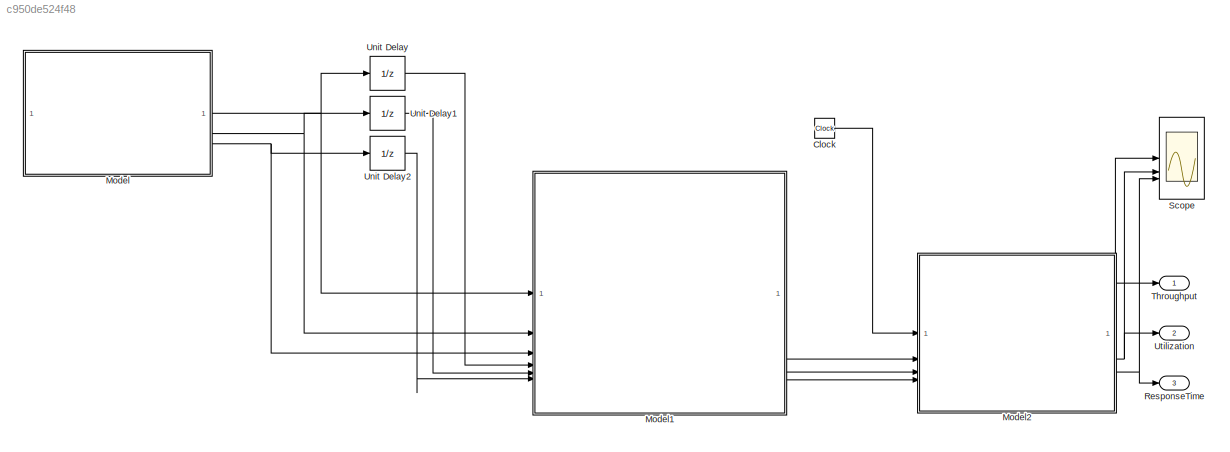
MODEL slx_c950de524f48
KIND model
CONFIG AbsTol = auto
CONFIG EnableMultiTasking = off
CONFIG FixedStep = auto
CONFIG MaxStep = auto
CONFIG MinStep = auto
CONFIG RelTol = 1e-3
CONFIG SampleTimeConstraint = Unconstrained
CONFIG SolverName = VariableStepAuto
CONFIG StartTime = 0.0
CONFIG StopTime = 10.0
BLOCK [Clock] Clock
  DisplayTime = on
BLOCK [ModelReference] Model
  ModelNameDialog = Customer.slx
  ModelReferenceVersion = 1.1
BLOCK [ModelReference] Model1
  ModelNameDialog = CalcTimes.slx
  ModelReferenceVersion = 1.5
BLOCK [ModelReference] Model2
  ModelNameDialog = PerformanceMetrics.slx
  ModelReferenceVersion = 1.2
BLOCK [Outport] ResponseTime
  Port = 3
BLOCK [Scope] Scope
  Floating = off
  NumInputPorts = 3
  ScopeSpecificationString = Simulink.scopes.TimeScopeBlockCfg('CurrentConfiguration', extmgr.ConfigurationSet(extmgr.Configuration('Core','General UI',true),extmgr.Configuration('Core','Source UI',true),extmgr.Configuration('Sources','WiredSimulink',true),extmgr.Configuration('Visuals','Time Domain',true,'SerializedDisplays',{struct('MinYLimReal','-23.125','MaxYLimReal','208.125','YLabelReal','','MinYLimMag','0.00000','MaxYL...<+1580ch>
BLOCK [Outport] Throughput
BLOCK [UnitDelay] Unit Delay
  HasFrameUpgradeWarning = on
  SampleTime = -1
BLOCK [UnitDelay] Unit Delay1
  HasFrameUpgradeWarning = on
  SampleTime = -1
BLOCK [UnitDelay] Unit Delay2
  HasFrameUpgradeWarning = on
  SampleTime = -1
BLOCK [Outport] Utilization
  Port = 2
LINE Clock:1 -> Model2:1
LINE Model1:4 -> Model2:2
LINE Model1:5 -> Model2:3
LINE Model1:6 -> Model2:4
NET Model2:1 -> Scope:1, Throughput:1
NET Model2:2 -> Scope:2, Utilization:1
NET Model2:3 -> ResponseTime:1, Scope:3
NET Model:1 -> Model1:1, Unit Delay:1
NET Model:2 -> Model1:2, Unit Delay1:1
NET Model:3 -> Model1:3, Unit Delay2:1
LINE Unit Delay1:1 -> Model1:5
LINE Unit Delay2:1 -> Model1:6
LINE Unit Delay:1 -> Model1:4
note: NET lines group one-source signal fan-out (src -> all destinations, sorted); 1:1 wires keep LINE
